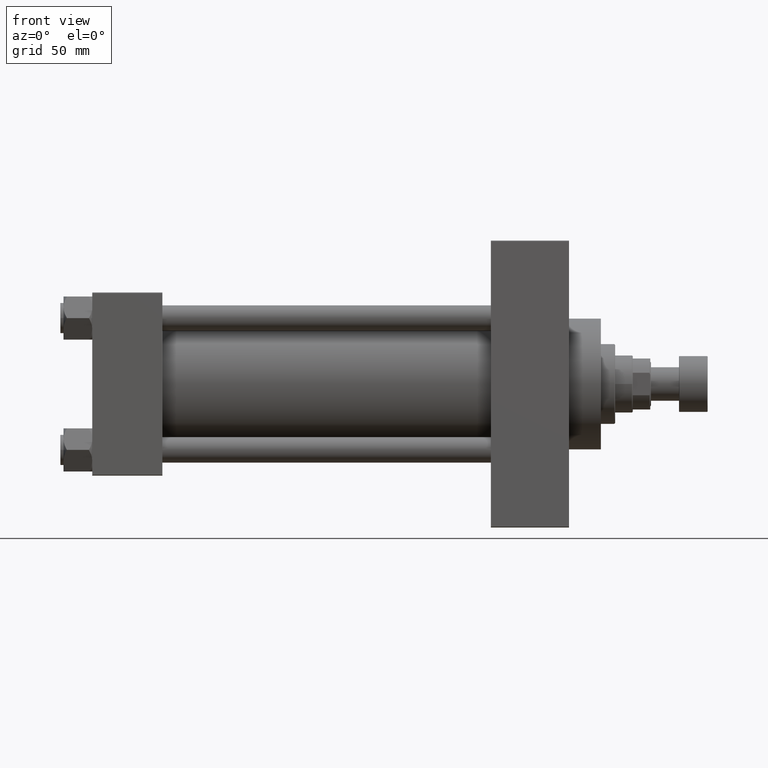
[diagram: clean part render]
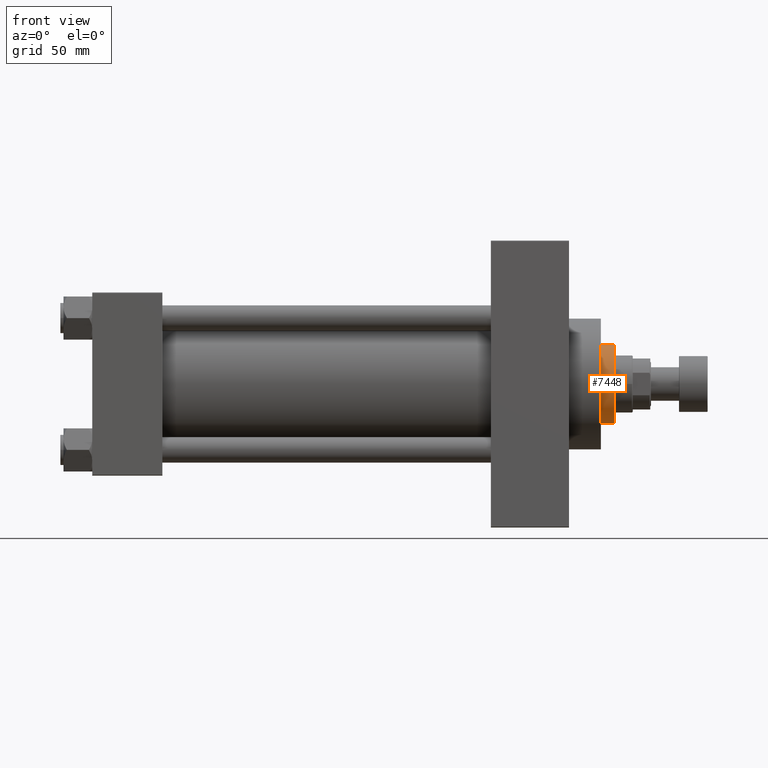
[diagram: same view with one face highlighted and labeled with its STEP entity id]
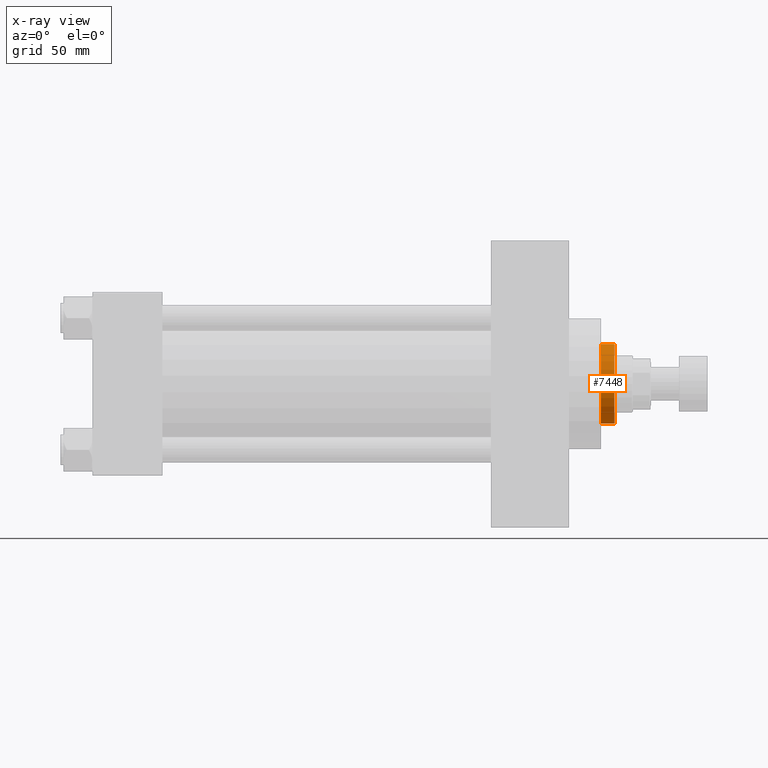
[diagram: x-ray of the same camera — body ghosted, the highlighted face saturated]
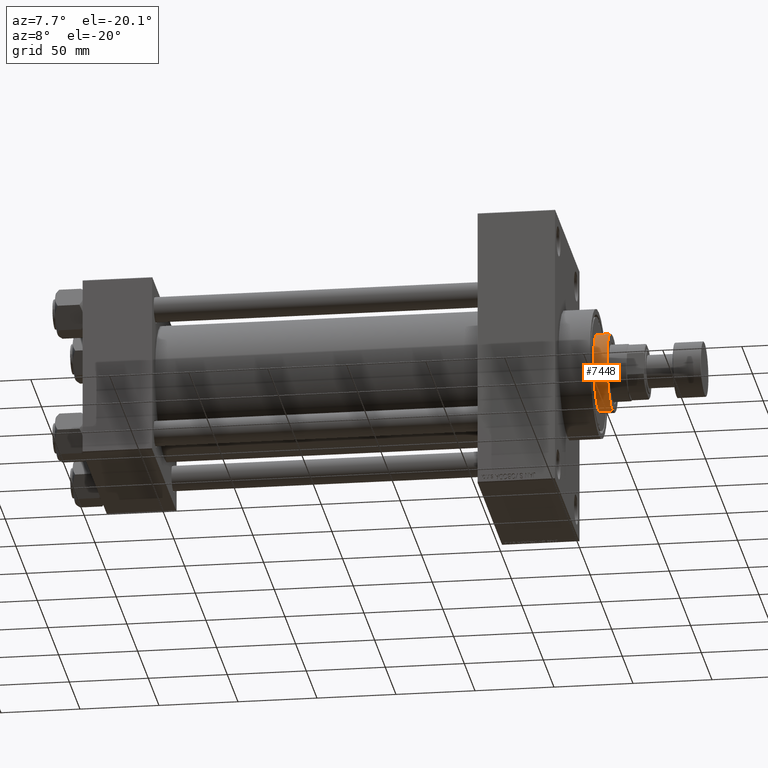
[diagram: same view with one face highlighted and labeled with its STEP entity id]
A machine part, front view. The second image highlights one B-rep face of the part: STEP entity #7448.
The next image is the same camera in x-ray: the body ghosted, the highlighted face saturated — about 0% of this face is hidden behind the body in this view.
A second angle (auxiliary view) of the same face is appended — the face is thin or edge-on in the first view.
In plain terms, the highlighted cylindrical surface (partial cylindrical patch) has radius 25 mm, axis along (-1, 0, 0).
Its self-contained STEP definition (entity closure, byte-faithful):
#1791 = CYLINDRICAL_SURFACE ( 'NONE', #44443, 25.00000000000000000 ) ;
#2101 = DIRECTION ( 'NONE',  ( -0.000000000000000000, -0.000000000000000000, -1.000000000000000000 ) ) ;
#3174 = VERTEX_POINT ( 'NONE', #24354 ) ;
#3226 = CARTESIAN_POINT ( 'NONE',  ( -25.00000000000000000, 0.000000000000000000, 51.75999999999996959 ) ) ;
#3999 = CARTESIAN_POINT ( 'NONE',  ( 0.000000000000000000, 0.000000000000000000, 51.75999999999996959 ) ) ;
#4983 = EDGE_CURVE ( 'NONE', #43325, #3174, #21394, .T. ) ;
#5208 = CARTESIAN_POINT ( 'NONE',  ( 0.000000000000000000, 0.000000000000000000, 52.25999999999999801 ) ) ;
#5282 = DIRECTION ( 'NONE',  ( 0.000000000000000000, 0.000000000000000000, 1.000000000000000000 ) ) ;
#5762 = DIRECTION ( 'NONE',  ( 1.000000000000000000, 0.000000000000000000, 0.000000000000000000 ) ) ;
#7448 = ADVANCED_FACE ( 'NONE', ( #46054 ), #1791, .T. ) ;
#8121 = EDGE_CURVE ( 'NONE', #13108, #3174, #33539, .T. ) ;
#9078 = EDGE_CURVE ( 'NONE', #43325, #34335, #10818, .T. ) ;
#10818 = CIRCLE ( 'NONE', #38143, 25.00000000000000000 ) ;
#11047 = EDGE_CURVE ( 'NONE', #34335, #13108, #35233, .T. ) ;
#12294 = DIRECTION ( 'NONE',  ( -1.000000000000000000, 0.000000000000000000, 0.000000000000000000 ) ) ;
#12495 = DIRECTION ( 'NONE',  ( -0.000000000000000000, -0.000000000000000000, -1.000000000000000000 ) ) ;
#13108 = VERTEX_POINT ( 'NONE', #37614 ) ;
#14091 = ORIENTED_EDGE ( 'NONE', *, *, #4983, .F. ) ;
#17141 = VECTOR ( 'NONE', #12495, 1000.000000000000000 ) ;
#21394 = LINE ( 'NONE', #24332, #23271 ) ;
#22507 = ORIENTED_EDGE ( 'NONE', *, *, #11047, .T. ) ;
#23271 = VECTOR ( 'NONE', #2101, 1000.000000000000000 ) ;
#24328 = CARTESIAN_POINT ( 'NONE',  ( 0.000000000000000000, 0.000000000000000000, 43.25999999999999801 ) ) ;
#24332 = CARTESIAN_POINT ( 'NONE',  ( -25.00000000000000000, 0.000000000000000000, 52.25999999999999801 ) ) ;
#24354 = CARTESIAN_POINT ( 'NONE',  ( -25.00000000000000000, 0.000000000000000000, 43.25999999999999801 ) ) ;
#24935 = ORIENTED_EDGE ( 'NONE', *, *, #9078, .T. ) ;
#25717 = AXIS2_PLACEMENT_3D ( 'NONE', #24328, #5282, #5762 ) ;
#27692 = DIRECTION ( 'NONE',  ( -0.000000000000000000, -0.000000000000000000, -1.000000000000000000 ) ) ;
#33539 = CIRCLE ( 'NONE', #25717, 25.00000000000000000 ) ;
#34335 = VERTEX_POINT ( 'NONE', #36378 ) ;
#35233 = LINE ( 'NONE', #37931, #17141 ) ;
#36378 = CARTESIAN_POINT ( 'NONE',  ( 25.00000000000000000, 3.061616997868383043E-15, 51.75999999999996959 ) ) ;
#36769 = DIRECTION ( 'NONE',  ( 0.000000000000000000, 0.000000000000000000, -1.000000000000000000 ) ) ;
#37614 = CARTESIAN_POINT ( 'NONE',  ( 25.00000000000000000, 3.061616997868383043E-15, 43.25999999999999801 ) ) ;
#37931 = CARTESIAN_POINT ( 'NONE',  ( 25.00000000000000000, 3.061616997868383043E-15, 52.25999999999999801 ) ) ;
#38143 = AXIS2_PLACEMENT_3D ( 'NONE', #3999, #36769, #44348 ) ;
#40998 = EDGE_LOOP ( 'NONE', ( #24935, #22507, #41583, #14091 ) ) ;
#41583 = ORIENTED_EDGE ( 'NONE', *, *, #8121, .T. ) ;
#43325 = VERTEX_POINT ( 'NONE', #3226 ) ;
#44348 = DIRECTION ( 'NONE',  ( 1.000000000000000000, 0.000000000000000000, 0.000000000000000000 ) ) ;
#44443 = AXIS2_PLACEMENT_3D ( 'NONE', #5208, #27692, #12294 ) ;
#46054 = FACE_OUTER_BOUND ( 'NONE', #40998, .T. ) ;